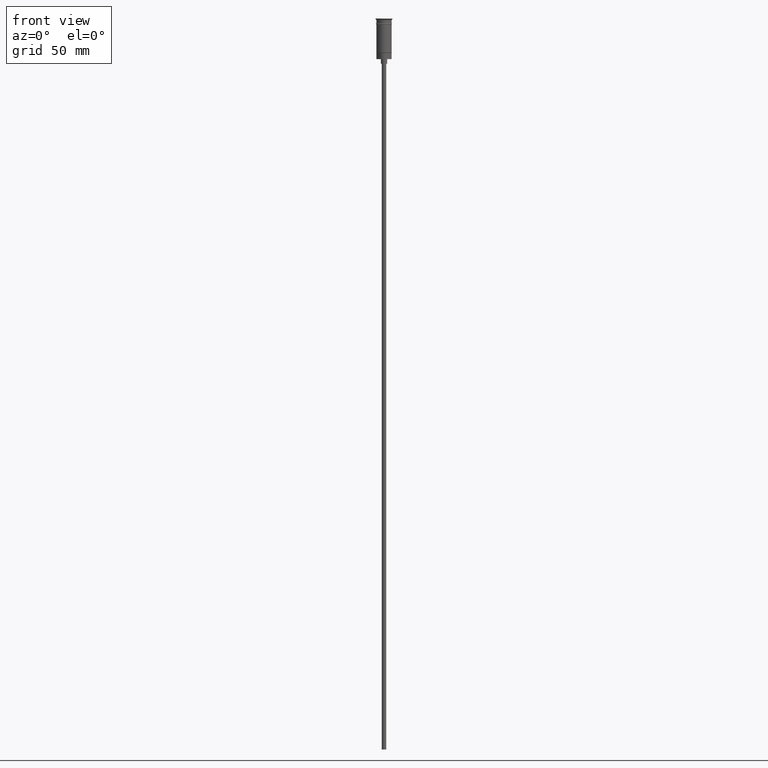
[diagram: clean part render]
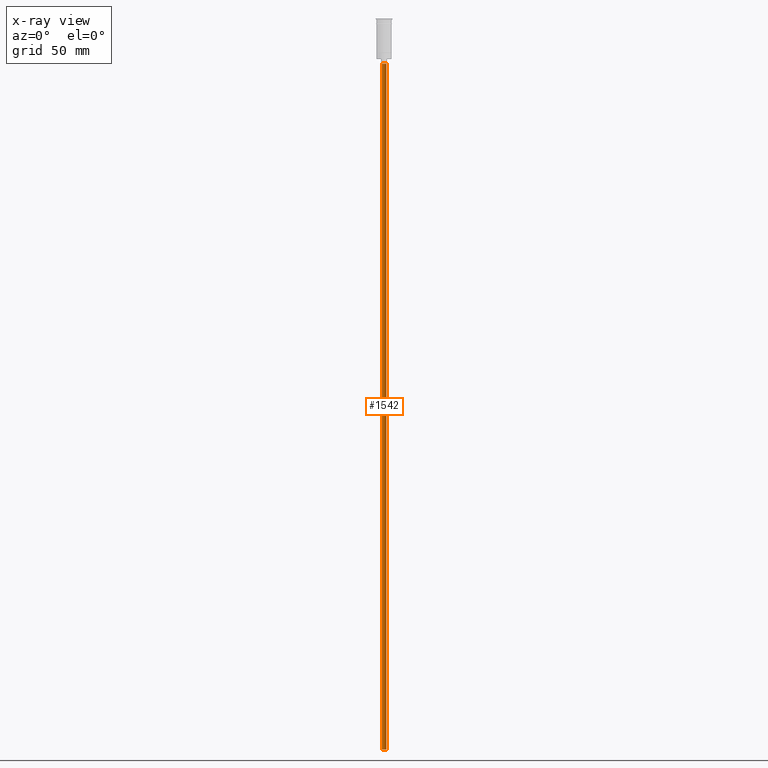
[diagram: x-ray — body ghosted, one internal face saturated and labeled with its STEP entity id]
A machine part, front view, then the same camera in x-ray: the body is ghosted and one INTERNAL B-rep face — a face not visible from any outside direction — is saturated and labeled: STEP entity #1542.
In plain terms, the highlighted cylindrical surface (edge-blend (fillet) strip) has radius 1.5 mm, axis along (-0, -0, 1).
Its self-contained STEP definition (entity closure, byte-faithful):
#63 = AXIS2_PLACEMENT_3D ( 'NONE', #813, #253, #1091 ) ;
#206 = DIRECTION ( 'NONE',  ( 1.000000000000000000, 0.000000000000000000, 0.000000000000000000 ) ) ;
#220 = VERTEX_POINT ( 'NONE', #332 ) ;
#221 = CARTESIAN_POINT ( 'NONE',  ( 1.500000000000000222, 0.000000000000000000, -476.5000000000000568 ) ) ;
#253 = DIRECTION ( 'NONE',  ( 0.000000000000000000, 0.000000000000000000, -1.000000000000000000 ) ) ;
#286 = VECTOR ( 'NONE', #1138, 1000.000000000000000 ) ;
#332 = CARTESIAN_POINT ( 'NONE',  ( 1.500000000000000222, 0.000000000000000000, -476.5000000000000568 ) ) ;
#374 = DIRECTION ( 'NONE',  ( -1.000000000000000000, 0.000000000000000000, 0.000000000000000000 ) ) ;
#448 = LINE ( 'NONE', #221, #286 ) ;
#484 = DIRECTION ( 'NONE',  ( -0.000000000000000000, -0.000000000000000000, 1.000000000000000000 ) ) ;
#538 = CARTESIAN_POINT ( 'NONE',  ( -1.500000000000000222, 1.836970198721030181E-16, -476.5000000000000568 ) ) ;
#548 = VERTEX_POINT ( 'NONE', #1332 ) ;
#552 = CYLINDRICAL_SURFACE ( 'NONE', #1308, 1.500000000000000222 ) ;
#574 = EDGE_LOOP ( 'NONE', ( #1092, #1397, #882, #1159 ) ) ;
#624 = VERTEX_POINT ( 'NONE', #538 ) ;
#669 = CIRCLE ( 'NONE', #63, 1.500000000000000222 ) ;
#775 = CIRCLE ( 'NONE', #1307, 1.500000000000000222 ) ;
#805 = CARTESIAN_POINT ( 'NONE',  ( 0.000000000000000000, 0.000000000000000000, -476.5000000000000568 ) ) ;
#813 = CARTESIAN_POINT ( 'NONE',  ( 0.000000000000000000, 0.000000000000000000, -29.50000000000000000 ) ) ;
#859 = EDGE_CURVE ( 'NONE', #1506, #548, #669, .T. ) ;
#882 = ORIENTED_EDGE ( 'NONE', *, *, #859, .T. ) ;
#918 = EDGE_CURVE ( 'NONE', #624, #1506, #995, .T. ) ;
#978 = DIRECTION ( 'NONE',  ( 0.000000000000000000, 0.000000000000000000, -1.000000000000000000 ) ) ;
#988 = EDGE_CURVE ( 'NONE', #624, #220, #775, .T. ) ;
#995 = LINE ( 'NONE', #1109, #1223 ) ;
#1060 = DIRECTION ( 'NONE',  ( -0.000000000000000000, -0.000000000000000000, 1.000000000000000000 ) ) ;
#1091 = DIRECTION ( 'NONE',  ( -1.000000000000000000, 0.000000000000000000, 0.000000000000000000 ) ) ;
#1092 = ORIENTED_EDGE ( 'NONE', *, *, #988, .F. ) ;
#1109 = CARTESIAN_POINT ( 'NONE',  ( -1.500000000000000222, 1.836970198721030181E-16, -476.5000000000000568 ) ) ;
#1130 = CARTESIAN_POINT ( 'NONE',  ( 0.000000000000000000, 0.000000000000000000, -476.5000000000000568 ) ) ;
#1138 = DIRECTION ( 'NONE',  ( -0.000000000000000000, -0.000000000000000000, 1.000000000000000000 ) ) ;
#1159 = ORIENTED_EDGE ( 'NONE', *, *, #1161, .F. ) ;
#1161 = EDGE_CURVE ( 'NONE', #220, #548, #448, .T. ) ;
#1223 = VECTOR ( 'NONE', #484, 1000.000000000000000 ) ;
#1287 = CARTESIAN_POINT ( 'NONE',  ( -1.500000000000000222, 1.836970198721030181E-16, -29.50000000000000000 ) ) ;
#1307 = AXIS2_PLACEMENT_3D ( 'NONE', #1130, #978, #374 ) ;
#1308 = AXIS2_PLACEMENT_3D ( 'NONE', #805, #1060, #206 ) ;
#1332 = CARTESIAN_POINT ( 'NONE',  ( 1.500000000000000222, 0.000000000000000000, -29.50000000000000000 ) ) ;
#1397 = ORIENTED_EDGE ( 'NONE', *, *, #918, .T. ) ;
#1506 = VERTEX_POINT ( 'NONE', #1287 ) ;
#1536 = FACE_OUTER_BOUND ( 'NONE', #574, .T. ) ;
#1542 = ADVANCED_FACE ( 'NONE', ( #1536 ), #552, .T. ) ;